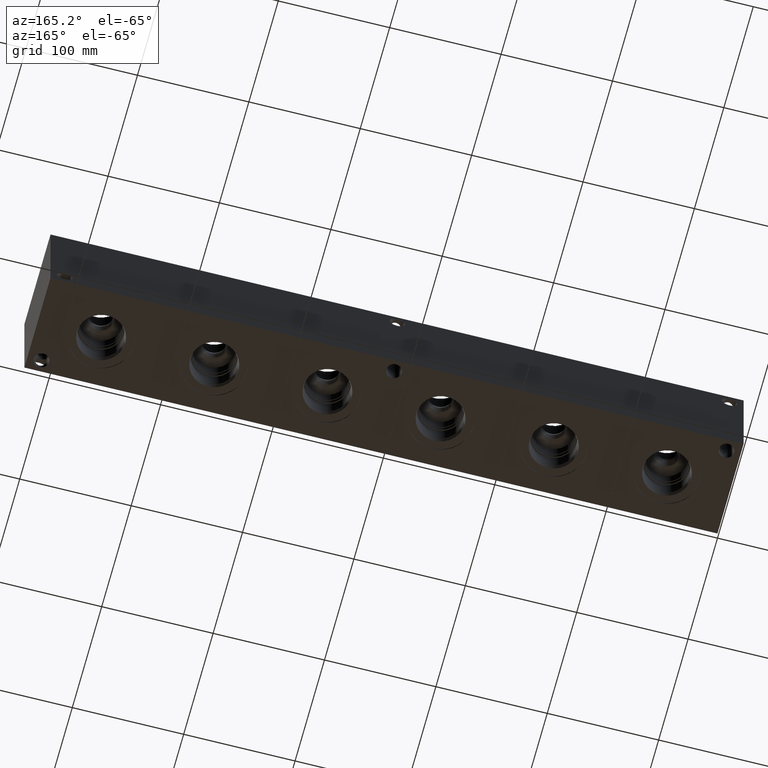
[diagram: clean part render]
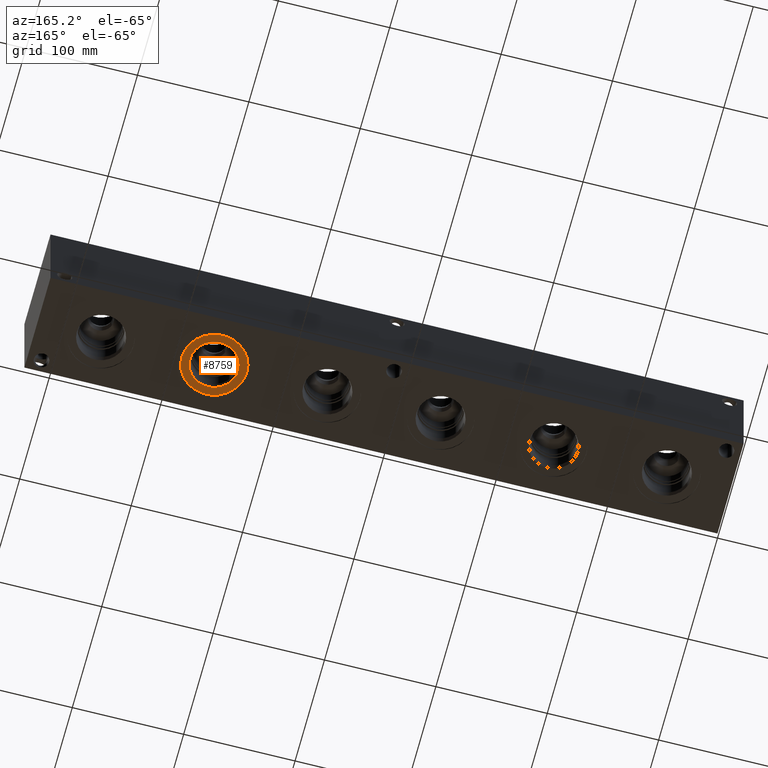
[diagram: same view with one face highlighted and labeled with its STEP entity id]
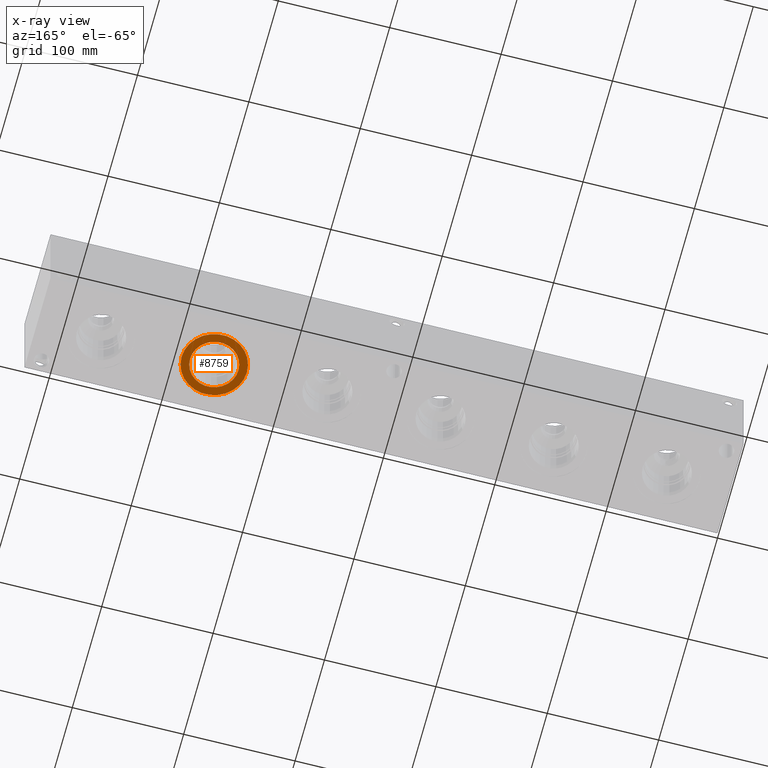
[diagram: x-ray of the same camera — body ghosted, the highlighted face saturated]
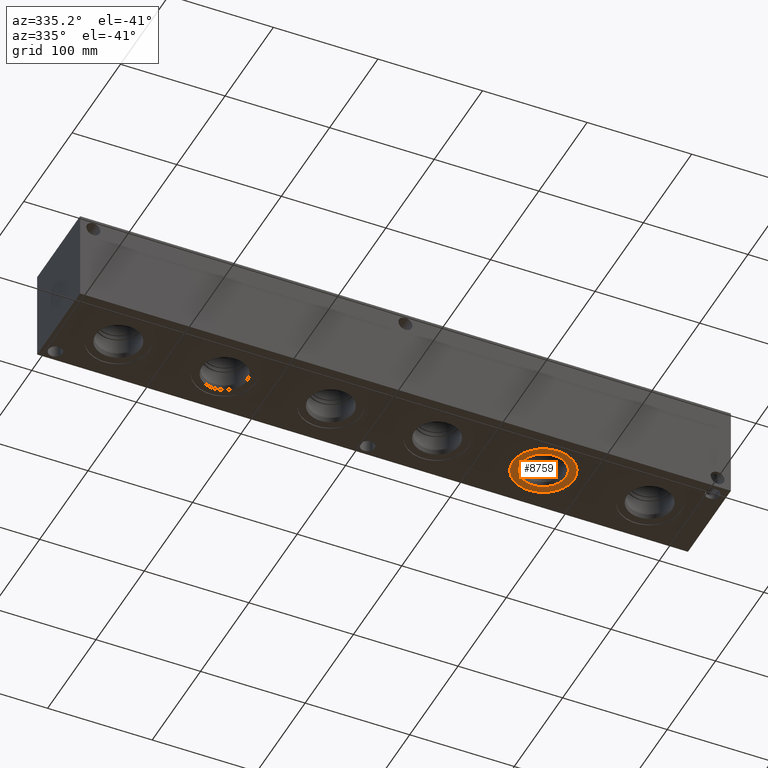
[diagram: same view with one face highlighted and labeled with its STEP entity id]
A machine part, auxiliary view. The second image highlights one B-rep face of the part: STEP entity #8759.
The next image is the same camera in x-ray: the body ghosted, the highlighted face saturated — about 0% of this face is hidden behind the body in this view.
A second angle (auxiliary view) of the same face is appended — the face is thin or edge-on in the first view.
In plain terms, the highlighted planar face has unit normal (0, 0, -1).
Its self-contained STEP definition (entity closure, byte-faithful):
#249=CIRCLE('',#9239,29.2862);
#250=CIRCLE('',#9240,29.2862);
#251=CIRCLE('',#9241,21.7551);
#419=FACE_BOUND('',#1676,.T.);
#1167=FACE_OUTER_BOUND('',#1675,.T.);
#1675=EDGE_LOOP('',(#7391,#7392));
#1676=EDGE_LOOP('',(#7393));
#4016=VERTEX_POINT('',#14992);
#4017=VERTEX_POINT('',#14993);
#4018=VERTEX_POINT('',#14996);
#5176=EDGE_CURVE('',#4016,#4017,#249,.T.);
#5177=EDGE_CURVE('',#4017,#4016,#250,.T.);
#5178=EDGE_CURVE('',#4018,#4018,#251,.T.);
#7391=ORIENTED_EDGE('',*,*,#5176,.T.);
#7392=ORIENTED_EDGE('',*,*,#5177,.T.);
#7393=ORIENTED_EDGE('',*,*,#5178,.F.);
#8058=PLANE('',#9238);
#8759=ADVANCED_FACE('',(#1167,#419),#8058,.T.);
#9238=AXIS2_PLACEMENT_3D('',#14991,#10886,#10887);
#9239=AXIS2_PLACEMENT_3D('',#14994,#10888,#10889);
#9240=AXIS2_PLACEMENT_3D('',#14995,#10890,#10891);
#9241=AXIS2_PLACEMENT_3D('',#14997,#10892,#10893);
#10886=DIRECTION('center_axis',(0.,0.,-1.));
#10887=DIRECTION('ref_axis',(1.,0.,0.));
#10888=DIRECTION('center_axis',(0.,0.,-1.));
#10889=DIRECTION('ref_axis',(1.,0.,0.));
#10890=DIRECTION('center_axis',(0.,0.,-1.));
#10891=DIRECTION('ref_axis',(1.,0.,0.));
#10892=DIRECTION('center_axis',(0.,0.,-1.));
#10893=DIRECTION('ref_axis',(1.,0.,0.));
#14991=CARTESIAN_POINT('Origin',(463.55,44.45,0.7874));
#14992=CARTESIAN_POINT('',(492.8362,44.45,0.7874));
#14993=CARTESIAN_POINT('',(434.2638,44.45,0.7874));
#14994=CARTESIAN_POINT('Origin',(463.55,44.45,0.7874));
#14995=CARTESIAN_POINT('Origin',(463.55,44.45,0.7874));
#14996=CARTESIAN_POINT('',(441.7949,44.45,0.7874));
#14997=CARTESIAN_POINT('Origin',(463.55,44.45,0.7874));